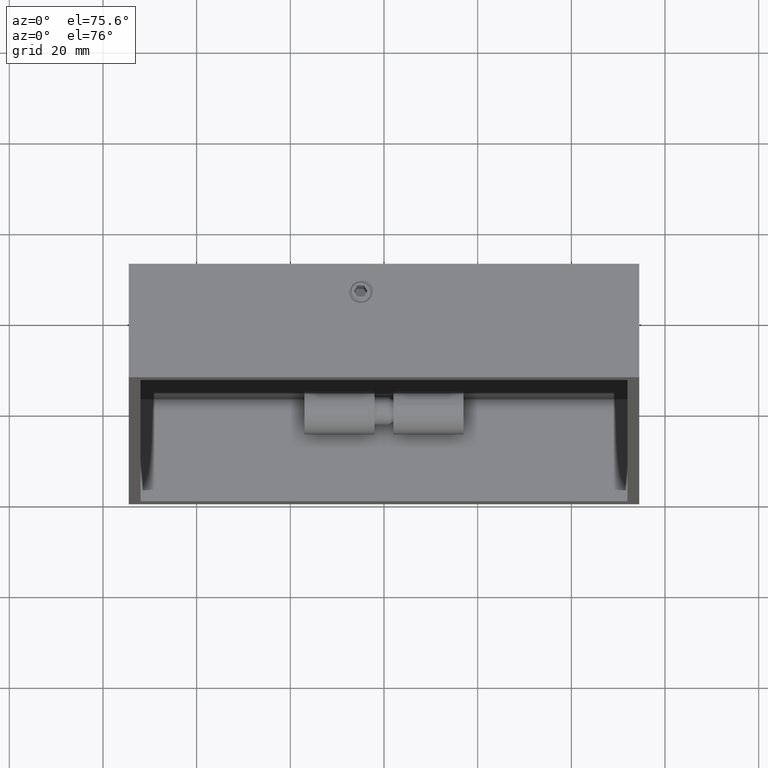
[diagram: clean part render]
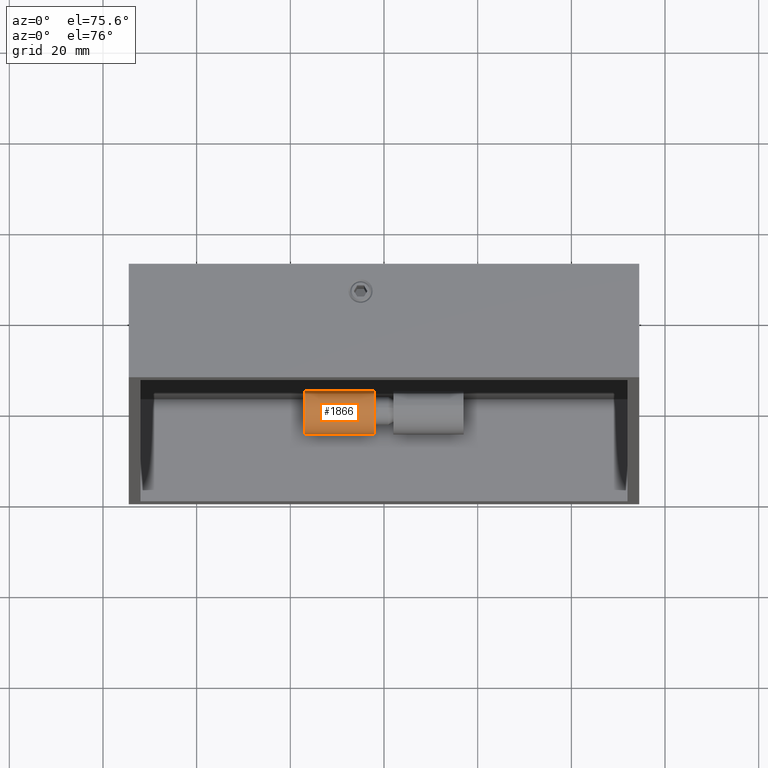
[diagram: same view with one face highlighted and labeled with its STEP entity id]
A machine part, auxiliary view. The second image highlights one B-rep face of the part: STEP entity #1866.
In plain terms, the highlighted cylindrical surface (edge-blend (fillet) strip) has radius 5 mm, axis along (1, 0, 0).
Its self-contained STEP definition (entity closure, byte-faithful):
#52 = FACE_OUTER_BOUND ( 'NONE', #12799, .T. ) ;
#216 = CARTESIAN_POINT ( 'NONE',  ( 25.25000000000000700, 19.00000000000000400, -48.50000000000000000 ) ) ;
#1534 = EDGE_CURVE ( 'NONE', #13593, #9942, #2487, .T. ) ;
#1557 = ORIENTED_EDGE ( 'NONE', *, *, #6984, .T. ) ;
#1866 = ADVANCED_FACE ( 'NONE', ( #52 ), #5372, .T. ) ;
#2487 = CIRCLE ( 'NONE', #9033, 4.999999999999997300 ) ;
#3147 = DIRECTION ( 'NONE',  ( 1.000000000000000000, 0.0000000000000000000, 1.273191542001326800E-016 ) ) ;
#3185 = CARTESIAN_POINT ( 'NONE',  ( 10.25000000000000900, 15.42928578572858100, -52.00000000000000700 ) ) ;
#3985 = VECTOR ( 'NONE', #13995, 1000.000000000000000 ) ;
#4190 = ORIENTED_EDGE ( 'NONE', *, *, #10552, .F. ) ;
#4250 = DIRECTION ( 'NONE',  ( 0.0000000000000000000, 0.0000000000000000000, -1.000000000000000000 ) ) ;
#4388 = CIRCLE ( 'NONE', #12702, 4.999999999999997300 ) ;
#5197 = DIRECTION ( 'NONE',  ( -1.000000000000000000, -0.0000000000000000000, -1.273191542001326800E-016 ) ) ;
#5372 = CYLINDRICAL_SURFACE ( 'NONE', #6594, 4.999999999999997300 ) ;
#6574 = DIRECTION ( 'NONE',  ( 0.0000000000000000000, 0.0000000000000000000, -1.000000000000000000 ) ) ;
#6594 = AXIS2_PLACEMENT_3D ( 'NONE', #9479, #10755, #4250 ) ;
#6821 = CARTESIAN_POINT ( 'NONE',  ( 10.25000000000000900, 19.00000000000000400, -48.50000000000000000 ) ) ;
#6984 = EDGE_CURVE ( 'NONE', #13593, #14332, #7507, .T. ) ;
#7011 = DIRECTION ( 'NONE',  ( -1.000000000000000000, -0.0000000000000000000, -1.273191542001326800E-016 ) ) ;
#7255 = LINE ( 'NONE', #9886, #16155 ) ;
#7507 = LINE ( 'NONE', #8687, #3985 ) ;
#8519 = ORIENTED_EDGE ( 'NONE', *, *, #12845, .T. ) ;
#8665 = CARTESIAN_POINT ( 'NONE',  ( 25.25000000000000700, 15.42928578572858100, -52.00000000000000700 ) ) ;
#8687 = CARTESIAN_POINT ( 'NONE',  ( 10.25000000000000900, 15.42928578572857400, -52.00000000000000000 ) ) ;
#9033 = AXIS2_PLACEMENT_3D ( 'NONE', #6821, #7011, #16091 ) ;
#9211 = CARTESIAN_POINT ( 'NONE',  ( 25.25000000000000700, 22.50000000000000400, -44.92928578572858100 ) ) ;
#9479 = CARTESIAN_POINT ( 'NONE',  ( 10.25000000000000900, 19.00000000000000400, -48.50000000000000000 ) ) ;
#9886 = CARTESIAN_POINT ( 'NONE',  ( 10.25000000000000900, 22.50000000000000000, -44.92928578572857400 ) ) ;
#9942 = VERTEX_POINT ( 'NONE', #15504 ) ;
#10552 = EDGE_CURVE ( 'NONE', #9942, #16005, #7255, .T. ) ;
#10755 = DIRECTION ( 'NONE',  ( 1.000000000000000000, 0.0000000000000000000, 1.273191542001326800E-016 ) ) ;
#12702 = AXIS2_PLACEMENT_3D ( 'NONE', #216, #5197, #6574 ) ;
#12799 = EDGE_LOOP ( 'NONE', ( #8519, #4190, #16605, #1557 ) ) ;
#12845 = EDGE_CURVE ( 'NONE', #14332, #16005, #4388, .T. ) ;
#13593 = VERTEX_POINT ( 'NONE', #3185 ) ;
#13995 = DIRECTION ( 'NONE',  ( 1.000000000000000000, 0.0000000000000000000, 1.273191542001326800E-016 ) ) ;
#14332 = VERTEX_POINT ( 'NONE', #8665 ) ;
#15504 = CARTESIAN_POINT ( 'NONE',  ( 10.25000000000000900, 22.50000000000000400, -44.92928578572858100 ) ) ;
#16005 = VERTEX_POINT ( 'NONE', #9211 ) ;
#16091 = DIRECTION ( 'NONE',  ( 0.0000000000000000000, 0.0000000000000000000, -1.000000000000000000 ) ) ;
#16155 = VECTOR ( 'NONE', #3147, 1000.000000000000000 ) ;
#16605 = ORIENTED_EDGE ( 'NONE', *, *, #1534, .F. ) ;